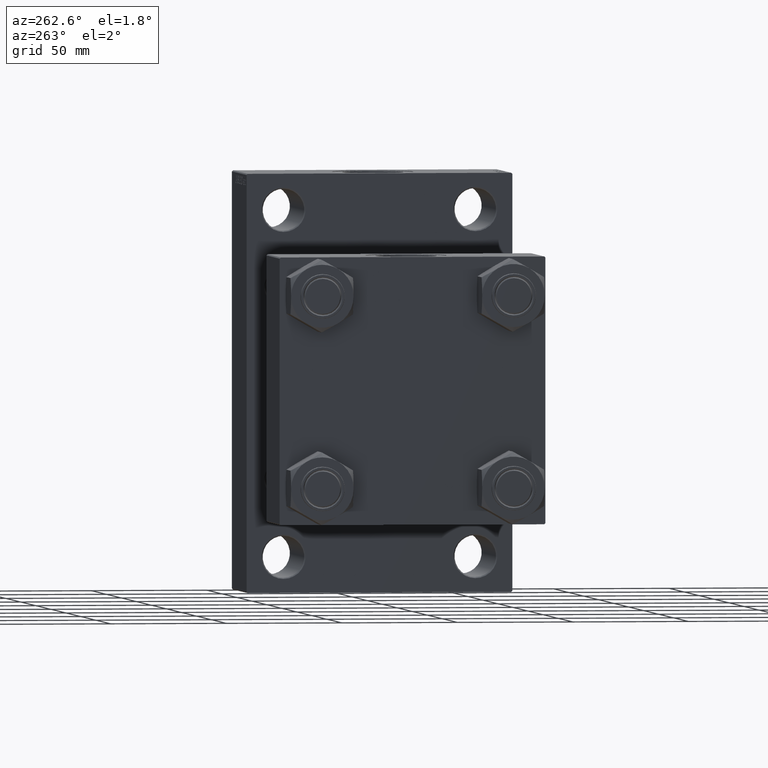
[diagram: clean part render]
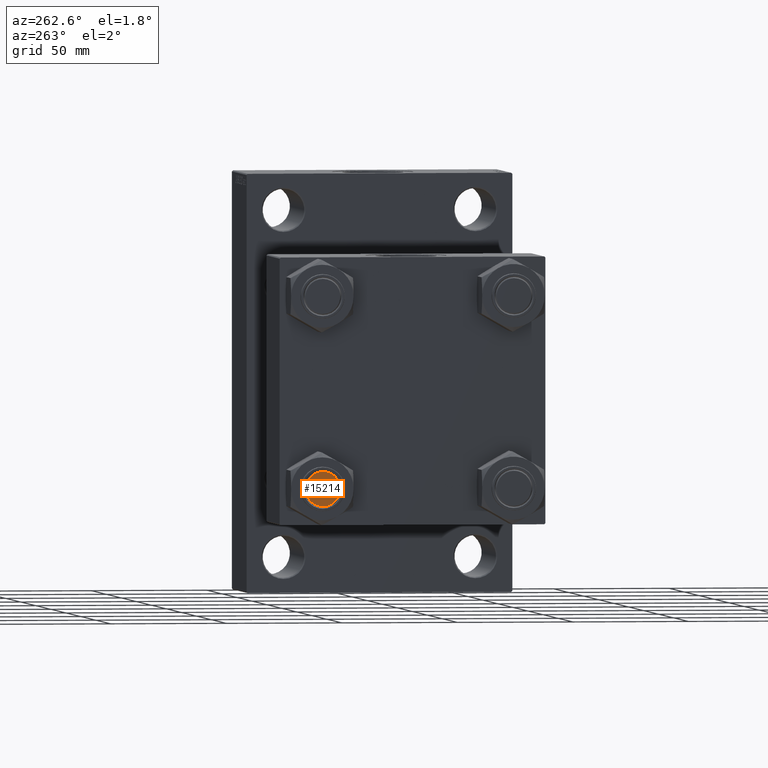
[diagram: same view with one face highlighted and labeled with its STEP entity id]
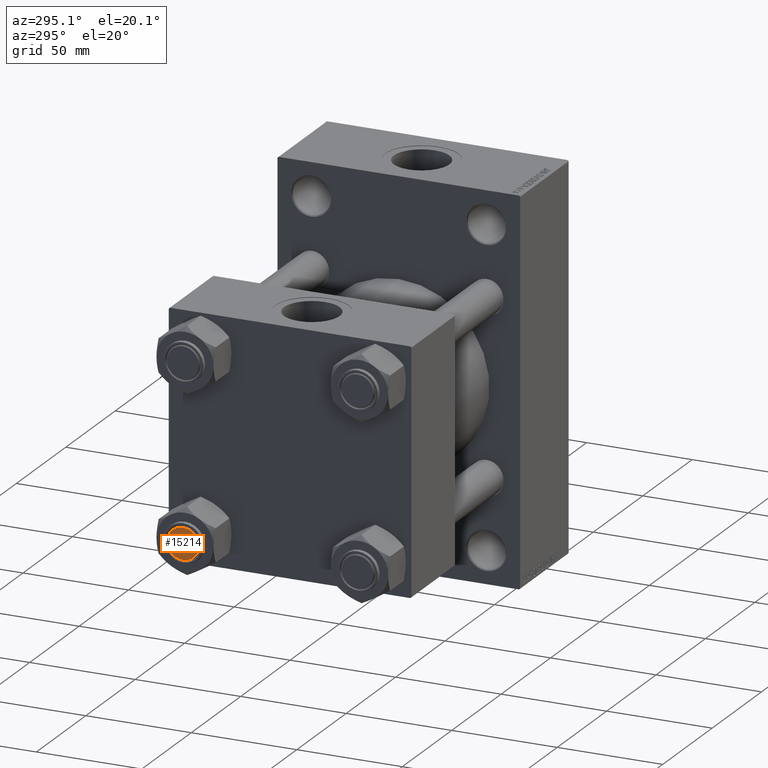
[diagram: same view with one face highlighted and labeled with its STEP entity id]
A machine part, auxiliary view. The second image highlights one B-rep face of the part: STEP entity #15214.
A second angle (auxiliary view) of the same face is appended — the face is thin or edge-on in the first view.
In plain terms, the highlighted planar face has unit normal (1, 0, 0).
Its self-contained STEP definition (entity closure, byte-faithful):
#261 = EDGE_CURVE ( 'NONE', #10768, #32054, #8280, .T. ) ;
#756 = DIRECTION ( 'NONE',  ( 1.000000000000000000, 0.000000000000000000, 0.000000000000000000 ) ) ;
#4757 = FACE_OUTER_BOUND ( 'NONE', #35119, .T. ) ;
#5989 = AXIS2_PLACEMENT_3D ( 'NONE', #37840, #8680, #756 ) ;
#7256 = CIRCLE ( 'NONE', #46516, 7.500000000000020428 ) ;
#8280 = CIRCLE ( 'NONE', #5989, 7.500000000000020428 ) ;
#8680 = DIRECTION ( 'NONE',  ( -0.000000000000000000, -0.000000000000000000, -1.000000000000000000 ) ) ;
#10129 = DIRECTION ( 'NONE',  ( -0.000000000000000000, -0.000000000000000000, -1.000000000000000000 ) ) ;
#10768 = VERTEX_POINT ( 'NONE', #20328 ) ;
#13399 = CARTESIAN_POINT ( 'NONE',  ( 0.000000000000000000, 0.000000000000000000, 0.000000000000000000 ) ) ;
#15214 = ADVANCED_FACE ( 'NONE', ( #4757 ), #32686, .F. ) ;
#18986 = EDGE_CURVE ( 'NONE', #32054, #10768, #7256, .T. ) ;
#20189 = AXIS2_PLACEMENT_3D ( 'NONE', #13399, #46445, #28100 ) ;
#20328 = CARTESIAN_POINT ( 'NONE',  ( -7.500000000000020428, 9.491012693392001592E-16, 0.000000000000000000 ) ) ;
#21676 = CARTESIAN_POINT ( 'NONE',  ( 0.000000000000000000, 0.000000000000000000, 0.000000000000000000 ) ) ;
#27611 = CARTESIAN_POINT ( 'NONE',  ( 7.500000000000020428, 0.000000000000000000, 0.000000000000000000 ) ) ;
#28100 = DIRECTION ( 'NONE',  ( 1.000000000000000000, 0.000000000000000000, -0.000000000000000000 ) ) ;
#31449 = ORIENTED_EDGE ( 'NONE', *, *, #18986, .T. ) ;
#32054 = VERTEX_POINT ( 'NONE', #27611 ) ;
#32686 = PLANE ( 'NONE',  #20189 ) ;
#35119 = EDGE_LOOP ( 'NONE', ( #31449, #39756 ) ) ;
#37840 = CARTESIAN_POINT ( 'NONE',  ( 0.000000000000000000, 0.000000000000000000, 0.000000000000000000 ) ) ;
#39756 = ORIENTED_EDGE ( 'NONE', *, *, #261, .T. ) ;
#43855 = DIRECTION ( 'NONE',  ( 1.000000000000000000, 0.000000000000000000, 0.000000000000000000 ) ) ;
#46445 = DIRECTION ( 'NONE',  ( 0.000000000000000000, 0.000000000000000000, 1.000000000000000000 ) ) ;
#46516 = AXIS2_PLACEMENT_3D ( 'NONE', #21676, #10129, #43855 ) ;